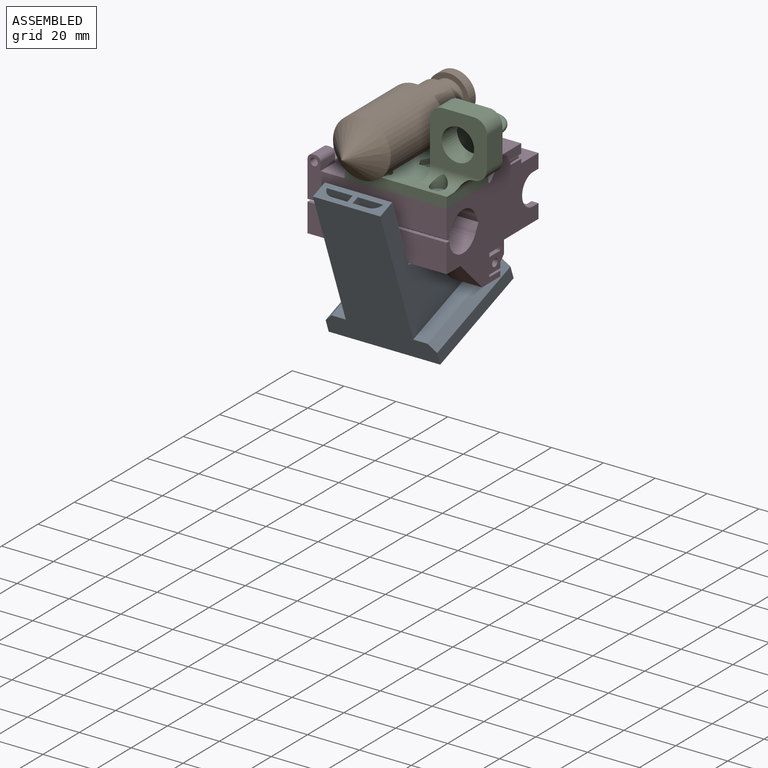
[diagram: assembled view]
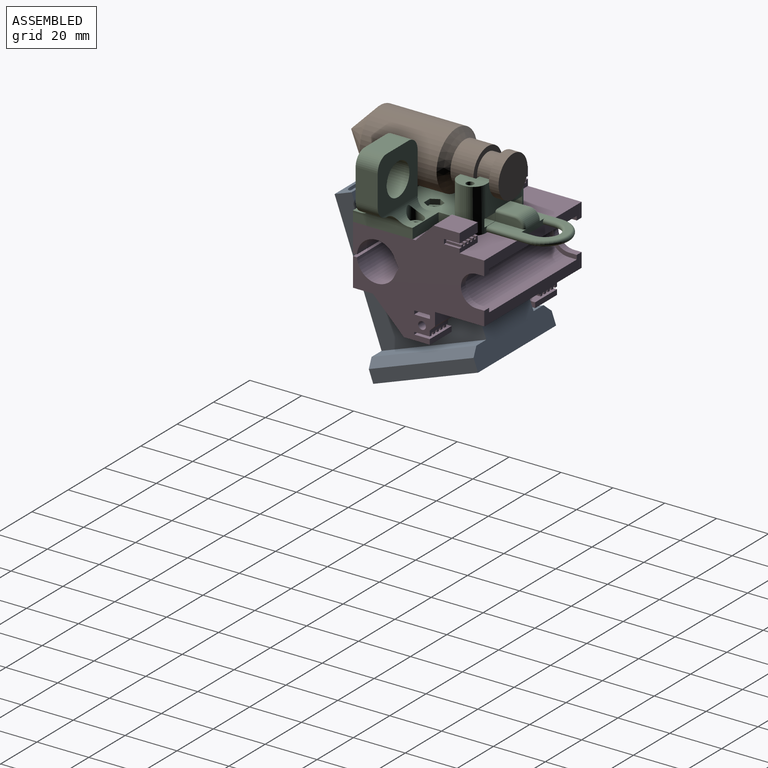
[diagram: assembled view, second angle]
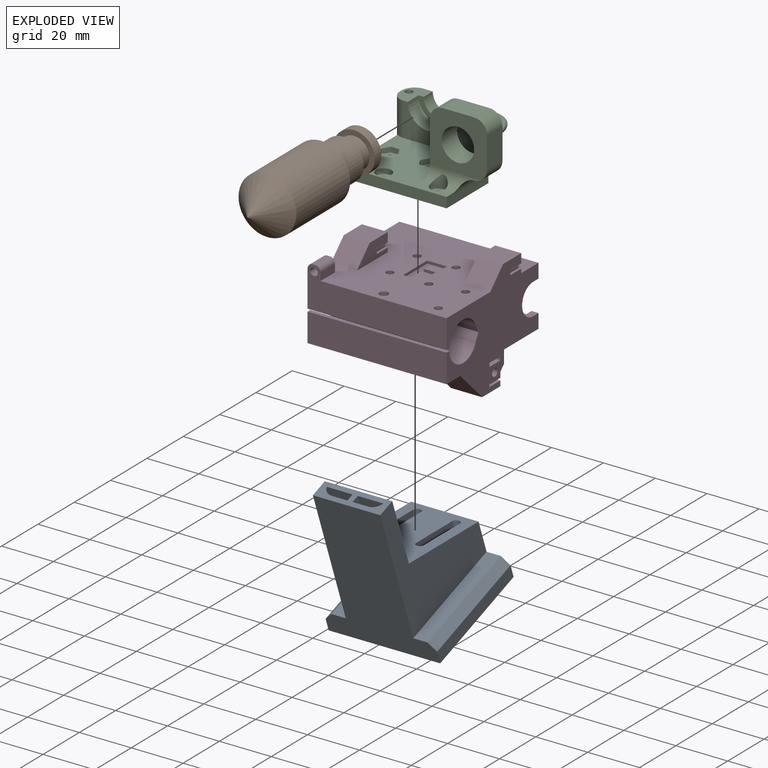
[diagram: exploded view]
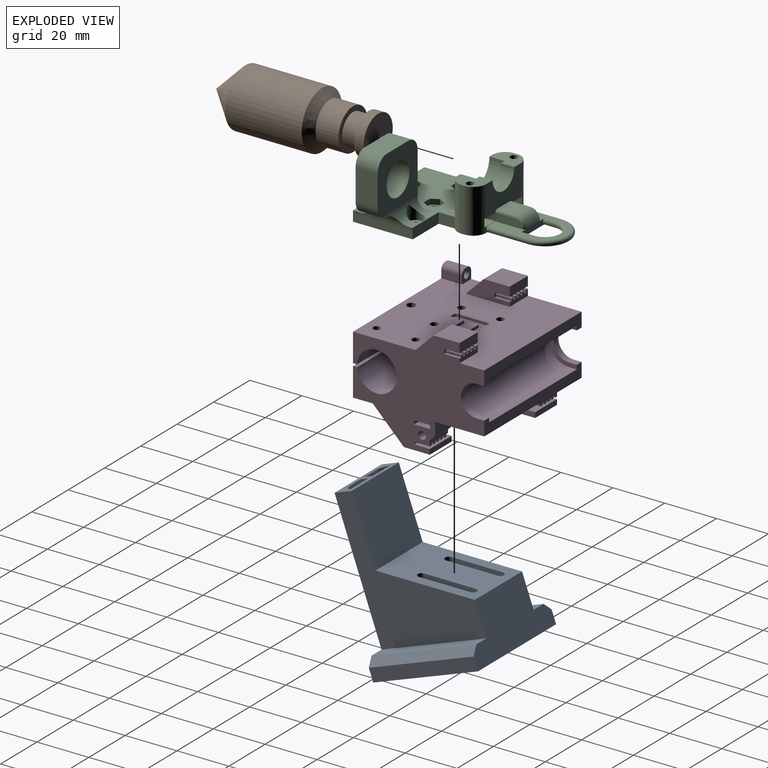
[diagram: exploded view, second angle]
ASSEMBLY  parts=4 mates=3
PART A: 95 faces, bbox 43.1x43.1x62.9 mm
  f0: plane 32.71x11.91mm, normal (0,0.34,-0.94), area 281.3mm2, adj f2,f4,f29,f46,f47,f48,f49,f93
  f1: plane 61x18.5mm, normal (0,-1,0), area 378.5mm2, adj f8,f14,f15,f35,f92,f94
  f2: plane 19.6x18.5mm, normal (0,1,0), area 204.5mm2, adj f0,f12,f15,f29,f40,f93
  f3: plane 24.8x9.87mm, normal (0,1,0), area 244.8mm2, adj f4,f14,f76,f93
  f4: cylinder r=5mm len=10mm, axis (-1,0,0), area 60.9mm2, adj f0,f3,f29,f76,f93
  f5: plane 3.5x0.67mm, normal (0,0,-1), area 2.3mm2, adj f12,f43,f85,f87
  f6: plane 3.5x0.67mm, normal (0,0,-1), area 2.3mm2, adj f12,f43,f74,f86
  f7: plane 3.5x0.67mm, normal (0,0,-1), area 2.3mm2, adj f8,f42,f89,f91
  f8: plane 39x6mm, normal (1,0,0), area 148.4mm2, adj f1,f7,f9,f13,f15,f26,f32,f35
  f9: plane 3.5x0.67mm, normal (0,0,-1), area 2.3mm2, adj f8,f42,f82,f90
  f10: plane 36x26mm, normal (0,-0.34,0.94), area 862.5mm2, adj f18,f20,f21,f22,f46,f47,f48,f49
  f11: plane 32.71x11.91mm, normal (0,0.34,-0.94), area 277.6mm2, adj f26,f27,f31,f50,f51,f52,f53,f79
  f12: plane 39x6mm, normal (-1,0,0), area 148.4mm2, adj f2,f5,f6,f15,f25,f30,f38,f40
  f13: plane 3.5x0.67mm, normal (0,0,-1), area 2.3mm2, adj f8,f42,f77,f88
  f14: plane 26x7mm, normal (0,0,1), area 128.8mm2, adj f1,f3,f16,f20,f21,f22,f25,f28
  f15: plane 43x43mm, normal (0,0,-1), area 406mm2, adj f1,f2,f8,f12,f16,f17,f18,f19
  f16: plane 61x43mm, normal (0,1,0), area 1713mm2, adj f14,f15,f17,f19,f20,f22,f23,f24
  f17: plane 43x5mm, normal (-1,0,0), area 215mm2, adj f15,f16,f18,f44
  f18: plane 43x21mm, normal (0,-1,0), area 673mm2, adj f10,f15,f17,f19,f20,f22,f23,f24
  f19: plane 43x5mm, normal (1,0,0), area 215mm2, adj f15,f16,f18,f45
  f20: plane 53x43mm, normal (-1,0,0), area 1074.9mm2, adj f10,f14,f16,f18,f21,f24
  f21: plane 26.9x26mm, normal (0,-1,0), area 699.3mm2, adj f10,f14,f20,f22
  f22: plane 53x43mm, normal (1,0,0), area 1074.9mm2, adj f10,f14,f16,f18,f21,f23
  f23: plane 43x5.5mm, normal (0,0,1), area 236.5mm2, adj f16,f18,f22,f45
  f24: plane 43x5.5mm, normal (0,0,1), area 236.5mm2, adj f16,f18,f20,f44
  f25: plane 61x18.5mm, normal (0,-1,0), area 408.4mm2, adj f12,f14,f15,f74,f75,f76,f93
  f26: plane 19.6x18.5mm, normal (0,1,0), area 160mm2, adj f8,f11,f15,f77,f78,f79,f94
  f27: plane 31x27.2mm, normal (1,0,0), area 522.3mm2, adj f11,f31,f36,f42,f79,f83,f92
  f28: plane 24.8x9.87mm, normal (0,1,0), area 244.8mm2, adj f14,f31,f92,f94
  f29: plane 35x32.2mm, normal (-1,0,0), area 625.1mm2, adj f0,f2,f4,f38,f40,f43,f76,f81
  f30: plane 3.5x0.67mm, normal (0,0,-1), area 2.3mm2, adj f12,f43,f80,f84
  f31: cylinder r=5mm len=10mm, axis (-1,0,0), area 60.9mm2, adj f11,f27,f28,f92,f94
  f32: plane 10x3.78mm, normal (0,-1,0), area 15.6mm2, adj f8,f33,f35,f82,f83
  f33: plane 8.25x5.05mm, normal (1,0,0), area 40.6mm2, adj f32,f35,f36,f83,f92
  f34: cylinder r=1.49mm len=5mm, axis (0,0,1), area 46.9mm2, adj f35,f37
  f35: plane 12.5x9mm, normal (0,0,-1), area 83.7mm2, adj f1,f8,f32,f33,f34,f92
  f36: plane 8.68x1.56mm, normal (0,0,1), area 11.2mm2, adj f27,f33,f83,f92
  f37: plane 2.98x2.98mm, normal (0,0,-1), area 7mm2, adj f34
  f38: plane 8.5x2.52mm, normal (0,1,0), area 10.9mm2, adj f12,f29,f40,f80,f81
  f39: cylinder r=1.5mm len=5mm, axis (0,0,1), area 47.1mm2, adj f40,f41
  f40: plane 9x8.5mm, normal (0,0,-1), area 69.4mm2, adj f2,f12,f29,f38,f39
  f41: plane 3x3mm, normal (0,0,-1), area 7.1mm2, adj f39
  f42: cylinder r=5mm len=22mm, axis (0,-1,0), area 172.8mm2, adj f7,f9,f13,f27,f54,f59,f78,f83
  f43: cylinder r=5mm len=22mm, axis (0,1,0), area 172.8mm2, adj f5,f6,f29,f30,f64,f69,f75,f81
  f44: plane 43x3mm, normal (-0.71,0,0.71), area 182.4mm2, adj f16,f17,f18,f24
  f45: plane 43x3mm, normal (0.71,0,0.71), area 182.4mm2, adj f16,f18,f19,f23
  f46: plane 19.39x8.69mm, normal (1,0,0), area 39.8mm2, adj f0,f10,f47,f49
  f47: cylinder r=1.5mm len=3mm, axis (0,-0.34,0.94), area 9.4mm2, adj f0,f10,f46,f48
  f48: plane 19.39x8.69mm, normal (-1,0,0), area 39.8mm2, adj f0,f10,f47,f49
  f49: cylinder r=1.5mm len=3mm, axis (0,-0.34,0.94), area 9.4mm2, adj f0,f10,f46,f48
  f50: plane 19.39x8.69mm, normal (-1,0,0), area 39.8mm2, adj f10,f11,f51,f53
  f51: cylinder r=1.5mm len=3mm, axis (0,-0.34,0.94), area 9.4mm2, adj f10,f11,f50,f52
  f52: plane 19.39x8.69mm, normal (1,0,0), area 39.8mm2, adj f10,f11,f51,f53
  f53: cylinder r=1.5mm len=3mm, axis (0,-0.34,0.94), area 9.4mm2, adj f10,f11,f50,f52
  f54: plane 10x1.5mm, normal (0,0,1), area 15mm2, adj f42,f57,f90,f91
  f55: plane 5x1mm, normal (0,-1,0), area 5mm2, adj f8,f57,f58,f91
  f56: plane 5x1mm, normal (0,1,0), area 5mm2, adj f8,f57,f58,f90
  f57: plane 10x5mm, normal (1,0,0), area 16.9mm2, adj f54,f55,f56,f58,f90,f91
  f58: plane 5x2mm, normal (0,0,-1), area 10mm2, adj f8,f55,f56,f57
  f59: plane 10x1.5mm, normal (0,0,1), area 15mm2, adj f42,f62,f88,f89
  f60: plane 5x1mm, normal (0,-1,0), area 5mm2, adj f8,f62,f63,f88
  f61: plane 5x1mm, normal (0,1,0), area 5mm2, adj f8,f62,f63,f89
  f62: plane 10x5mm, normal (1,0,0), area 16.9mm2, adj f59,f60,f61,f63,f88,f89
  f63: plane 5x2mm, normal (0,0,-1), area 10mm2, adj f8,f60,f61,f62
  f64: plane 10x1.5mm, normal (0,0,1), area 15mm2, adj f43,f66,f86,f87
  f65: plane 5x1mm, normal (0,-1,0), area 5mm2, adj f12,f66,f68,f87
  f66: plane 10x5mm, normal (-1,0,0), area 16.9mm2, adj f64,f65,f67,f68,f86,f87
  f67: plane 5x1mm, normal (0,1,0), area 5mm2, adj f12,f66,f68,f86
  f68: plane 5x2mm, normal (0,0,-1), area 10mm2, adj f12,f65,f66,f67
  f69: plane 10x1.5mm, normal (0,0,1), area 15mm2, adj f43,f71,f84,f85
  f70: plane 5x1mm, normal (0,-1,0), area 5mm2, adj f12,f71,f73,f84
  f71: plane 10x5mm, normal (-1,0,0), area 16.9mm2, adj f69,f70,f72,f73,f84,f85
  f72: plane 5x1mm, normal (0,1,0), area 5mm2, adj f12,f71,f73,f85
  f73: plane 5x2mm, normal (0,0,-1), area 10mm2, adj f12,f70,f71,f72
  f74: cylinder r=4mm len=4mm, axis (-1,0,0), area 22mm2, adj f6,f12,f25,f75
  f75: torus R=9mm, axis (0,1,0), area 63.7mm2, adj f25,f43,f74,f76
  f76: cylinder r=4mm len=50mm, axis (0,0,1), area 287mm2, adj f3,f4,f14,f25,f29,f75
  f77: cylinder r=4mm len=4mm, axis (1,0,0), area 22mm2, adj f8,f13,f26,f78
  f78: torus R=9mm, axis (0,1,0), area 63.7mm2, adj f26,f42,f77,f79
  f79: cylinder r=4mm len=10.06mm, axis (0,0,-1), area 57.4mm2, adj f11,f26,f27,f78
  f80: cylinder r=4mm len=4mm, axis (-1,0,0), area 22mm2, adj f12,f30,f38,f81
  f81: torus R=9mm, axis (0,1,0), area 38.1mm2, adj f29,f38,f43,f80
  f82: cylinder r=4mm len=4mm, axis (1,0,0), area 22mm2, adj f8,f9,f32,f83
  f83: torus R=9mm, axis (0,-1,0), area 41mm2, adj f27,f32,f33,f36,f42,f82
  f84: cylinder r=4mm len=5mm, axis (1,0,0), area 31.4mm2, adj f12,f30,f69,f70,f71
  f85: cylinder r=4mm len=5mm, axis (-1,0,0), area 31.4mm2, adj f5,f12,f69,f71,f72
  f86: cylinder r=4mm len=5mm, axis (-1,0,0), area 31.4mm2, adj f6,f12,f64,f66,f67
  f87: cylinder r=4mm len=5mm, axis (1,0,0), area 31.4mm2, adj f5,f12,f64,f65,f66
  f88: cylinder r=4mm len=5mm, axis (1,0,0), area 31.4mm2, adj f8,f13,f59,f60,f62
  f89: cylinder r=4mm len=5mm, axis (-1,0,0), area 31.4mm2, adj f7,f8,f59,f61,f62
  f90: cylinder r=4mm len=5mm, axis (-1,0,0), area 31.4mm2, adj f8,f9,f54,f56,f57
  f91: cylinder r=4mm len=5mm, axis (1,0,0), area 31.4mm2, adj f7,f8,f54,f55,f57
  f92: cylinder r=4mm len=60mm, axis (0,0,-1), area 332mm2, adj f1,f14,f27,f28,f31,f33,f35,f36
  f93: plane 61x39mm, normal (1,0,0), area 1126.7mm2, adj f0,f2,f3,f4,f14,f15,f25
  f94: plane 61x39mm, normal (-1,0,0), area 1126.7mm2, adj f1,f11,f14,f15,f26,f28,f31
PART B: 10 faces, bbox 22.3x22.3x62.3 mm
  f0: cylinder r=8mm len=16mm, axis (0,0,-1), area 186mm2, adj f1,f2
  f1: plane 16x16mm, normal (0,0,1), area 201.1mm2, adj f0
  f2: plane 16x16mm, normal (0,0,-1), area 88mm2, adj f0,f3
  f3: cylinder r=6mm len=12mm, axis (0,0,1), area 226.2mm2, adj f2,f5
  f4: cylinder r=8mm len=16mm, axis (0,0,1), area 444.8mm2, adj f5,f8
  f5: plane 16x16mm, normal (0,0,1), area 88mm2, adj f3,f4
  f6: cylinder r=11.15mm len=29.6mm, axis (0,0,1), area 2073.7mm2, adj f8,f9
  f7: plane 0.3x0.3mm, normal (0,0,-1), area 0.1mm2, adj f9
  f8: cone r=11.15mm half-angle=45deg, axis (0,0,-1), area 268mm2, adj f4,f6
  f9: cone r=0.15mm half-angle=45deg, axis (0,0,1), area 552.3mm2, adj f6,f7
PART C: 114 faces, bbox 51.3x65.5x30 mm
  f0: plane 19x15.9mm, normal (0,1,0), area 162.2mm2, adj f3,f4,f9,f10,f13,f70,f72,f74
  f1: plane 1.71x0.13mm, normal (0,0,-1), area 0.1mm2, adj f17,f79
  f2: plane 1.71x0.13mm, normal (0,0,-1), area 0.1mm2, adj f20,f70
  f3: cylinder r=5mm len=17mm, axis (0,0,-1), area 131.1mm2, adj f0,f12,f13,f23,f78,f79,f80,f91
  f4: cylinder r=5mm len=17mm, axis (0,0,-1), area 131.1mm2, adj f0,f9,f12,f24,f72,f73,f74,f89
  f5: plane 39.4x29.24mm, normal (0,0,1), area 684.8mm2, adj f6,f11,f14,f27,f28,f30,f31,f39
  f6: plane 29.24x4mm, normal (-1,0,0), area 117mm2, adj f5,f12,f28,f30
  f7: cylinder r=1.68mm len=3.35mm, axis (0,0,1), area 21mm2, adj f12,f21
  f8: cylinder r=1.68mm len=3.35mm, axis (0,0,1), area 21mm2, adj f12,f18
  f9: plane 11x8.5mm, normal (0,0,1), area 64.2mm2, adj f0,f4,f10,f14,f15,f16,f24,f26
  f10: cylinder r=6mm len=12mm, axis (0,1,0), area 94.2mm2, adj f0,f9,f13,f16
  f11: plane 6.24x4mm, normal (1,0,0), area 25mm2, adj f5,f12,f27,f31
  f12: plane 63.74x41.3mm, normal (0,0,-1), area 1518.2mm2, adj f3,f4,f6,f7,f8,f11,f23,f24
  f13: plane 11x8.5mm, normal (0,0,1), area 64.2mm2, adj f0,f3,f10,f14,f15,f16,f23,f25
  f14: plane 19x13mm, normal (0,-1,0), area 146.5mm2, adj f5,f9,f13,f15,f27,f28
  f15: cylinder r=8mm len=16mm, axis (0,-1,0), area 150.8mm2, adj f9,f13,f14,f16
  f16: plane 16x8mm, normal (0,-1,0), area 44mm2, adj f9,f10,f13,f15
  f17: cylinder r=3mm len=6mm, axis (0,0,1), area 10mm2, adj f1,f18,f19,f76,f77,f78,f79
  f18: plane 6x6mm, normal (0,0,1), area 19.5mm2, adj f8,f17
  f19: plane 1.71x0.13mm, normal (0,0,-1), area 0.1mm2, adj f17,f76
  f20: cylinder r=3mm len=6mm, axis (0,0,1), area 10mm2, adj f2,f21,f22,f70,f71,f72,f73
  f21: plane 6x6mm, normal (0,0,1), area 19.5mm2, adj f7,f20
  f22: plane 1.71x0.13mm, normal (0,0,-1), area 0.1mm2, adj f20,f73
  f23: plane 17x1mm, normal (1,0,0), area 17mm2, adj f3,f12,f13,f27
  f24: plane 17x1mm, normal (-1,0,0), area 17mm2, adj f4,f9,f12,f28
  f25: cylinder r=1.45mm len=17mm, axis (0,0,1), area 154.9mm2, adj f12,f13
  f26: cylinder r=1.45mm len=17mm, axis (0,0,1), area 154.9mm2, adj f9,f12
  f27: cylinder r=5mm len=17mm, axis (0,0,-1), area 120.6mm2, adj f5,f11,f12,f13,f14,f23
  f28: cylinder r=5mm len=17mm, axis (0,0,1), area 120.6mm2, adj f5,f6,f9,f12,f14,f24
  f29: plane 23x3mm, normal (1,0,0), area 69mm2, adj f12,f30,f31,f39
  f30: plane 39.4x4mm, normal (0,-1,0), area 157.2mm2, adj f5,f6,f12,f29,f39
  f31: plane 14.4x4mm, normal (0,1,0), area 57.2mm2, adj f5,f11,f12,f29,f39
  f32: plane 19x10.5mm, normal (-1,0,0), area 163.4mm2, adj f35,f36,f37,f67,f68,f69
  f33: plane 12x8.5mm, normal (0,0,1), area 102mm2, adj f35,f36,f37,f38
  f34: plane 12x8.5mm, normal (1,0,0), area 102mm2, adj f35,f36,f38,f40
  f35: plane 22x21mm, normal (0,-1,0), area 326.1mm2, adj f32,f33,f34,f37,f38,f40,f41,f68
  f36: plane 22x21mm, normal (0,1,0), area 326.1mm2, adj f32,f33,f34,f37,f38,f40,f41,f67
  f37: cylinder r=5mm len=8.5mm, axis (0,1,0), area 66.8mm2, adj f32,f33,f35,f36
  f38: cylinder r=5mm len=8.5mm, axis (0,-1,0), area 66.8mm2, adj f33,f34,f35,f36
  f39: cylinder r=5mm len=23mm, axis (0,1,0), area 94mm2, adj f5,f29,f30,f31,f40,f67,f68
  f40: cylinder r=5mm len=8.7mm, axis (0,1,0), area 67.1mm2, adj f34,f35,f36,f39,f67,f68
  f41: cylinder r=6.25mm len=12.5mm, axis (0,1,0), area 333.8mm2, adj f35,f36
  f42: cylinder r=3mm len=6mm, axis (0,0,1), area 57.4mm2, adj f5,f43,f67
  f43: plane 6x6mm, normal (0,0,1), area 19.5mm2, adj f42,f66
  f44: plane 2.86x2mm, normal (-0.87,0.5,0), area 6.6mm2, adj f5,f45,f49,f50
  f45: plane 2.86x2mm, normal (-0.87,-0.5,0), area 6.6mm2, adj f5,f44,f46,f50
  f46: plane 3.3x2mm, normal (0,-1,0), area 6.6mm2, adj f5,f45,f47,f50
  f47: plane 2.86x2mm, normal (0.87,-0.5,0), area 6.6mm2, adj f5,f46,f48,f50
  f48: plane 2.86x2mm, normal (0.87,0.5,0), area 6.6mm2, adj f5,f47,f49,f50
  f49: plane 3.3x2mm, normal (0,1,0), area 6.6mm2, adj f5,f44,f48,f50
  f50: plane 6.6x5.72mm, normal (0,0,1), area 19.5mm2, adj f44,f45,f46,f47,f48,f49,f65
  f51: cylinder r=3mm len=6mm, axis (0,0,1), area 37.7mm2, adj f5,f52
  f52: plane 6x6mm, normal (0,0,1), area 19.5mm2, adj f51,f64
  f53: plane 2.86x2mm, normal (-0.87,-0.5,0), area 6.6mm2, adj f5,f54,f58,f59
  f54: plane 3.3x2mm, normal (0,-1,0), area 6.6mm2, adj f5,f53,f55,f59
  f55: plane 2.86x2mm, normal (0.87,-0.5,0), area 6.6mm2, adj f5,f54,f56,f59
  f56: plane 2.86x2mm, normal (0.87,0.5,0), area 6.6mm2, adj f5,f55,f57,f59
  f57: plane 3.3x2mm, normal (0,1,0), area 6.6mm2, adj f5,f56,f58,f59
  f58: plane 2.86x2mm, normal (-0.87,0.5,0), area 6.6mm2, adj f5,f53,f57,f59
  f59: plane 6.6x5.72mm, normal (0,0,1), area 19.5mm2, adj f53,f54,f55,f56,f57,f58,f63
  f60: cylinder r=3mm len=6mm, axis (0,0,1), area 54.6mm2, adj f5,f61,f68
  f61: plane 6x6mm, normal (0,0,1), area 19.5mm2, adj f60,f62
  f62: cylinder r=1.68mm len=3.35mm, axis (0,0,1), area 21mm2, adj f12,f61
  f63: cylinder r=1.68mm len=3.35mm, axis (0,0,1), area 21mm2, adj f12,f59
  f64: cylinder r=1.68mm len=3.35mm, axis (0,0,1), area 21mm2, adj f12,f52
  f65: cylinder r=1.68mm len=3.35mm, axis (0,0,1), area 21mm2, adj f12,f50
  f66: cylinder r=1.68mm len=3.35mm, axis (0,0,1), area 21mm2, adj f12,f43
  f67: cylinder r=5mm len=22mm, axis (-1,0,0), area 80.7mm2, adj f5,f32,f36,f39,f40,f42,f69
  f68: cylinder r=5mm len=22mm, axis (1,0,0), area 83mm2, adj f5,f32,f35,f39,f40,f60,f69
  f69: cylinder r=2mm len=18.5mm, axis (0,-1,0), area 44.1mm2, adj f5,f32,f67,f68
  f70: plane 10x3mm, normal (-1,0,0), area 26.9mm2, adj f0,f2,f20,f71,f72,f74,f75
  f71: plane 5.75x2.7mm, normal (0,0,1), area 6.5mm2, adj f20,f70,f73,f75
  f72: plane 5.75x5.58mm, normal (0,0,1), area 23mm2, adj f0,f4,f20,f70,f73
  f73: plane 9.92x3mm, normal (1,0,0), area 26.7mm2, adj f4,f20,f22,f71,f72,f74,f75
  f74: plane 10x5.75mm, normal (0,0,-1), area 48.7mm2, adj f0,f4,f70,f73,f75,f84
  f75: plane 5.75x3mm, normal (0,1,0), area 17.2mm2, adj f70,f71,f73,f74
  f76: plane 10x3mm, normal (1,0,0), area 26.9mm2, adj f0,f17,f19,f77,f78,f80,f81
  f77: plane 5.75x2.7mm, normal (0,0,1), area 6.5mm2, adj f17,f76,f79,f81
  f78: plane 5.75x5.58mm, normal (0,0,1), area 23mm2, adj f0,f3,f17,f76,f79
  f79: plane 9.92x3mm, normal (-1,0,0), area 26.7mm2, adj f1,f3,f17,f77,f78,f80,f81
  f80: plane 10x5.75mm, normal (0,0,-1), area 48.7mm2, adj f0,f3,f76,f79,f81,f82
  f81: plane 5.75x3mm, normal (0,1,0), area 17.2mm2, adj f76,f77,f79,f80
  f82: cylinder r=1.68mm len=3.8mm, axis (0,0,-1), area 40mm2, adj f80,f83
  f83: plane 3.35x3.35mm, normal (0,0,-1), area 8.8mm2, adj f82
  f84: cylinder r=1.68mm len=3.8mm, axis (0,0,-1), area 40mm2, adj f74,f85
  f85: plane 3.35x3.35mm, normal (0,0,-1), area 8.8mm2, adj f84
  f86: cylinder r=5.5mm len=11mm, axis (0,0,-1), area 1.7mm2, adj f87,f92,f106,f112
  f87: plane 4.64x0.1mm, normal (1,0,0), area 0.5mm2, adj f86,f88,f105,f111
  f88: plane 13x2.1mm, normal (0,1,0), area 24mm2, adj f12,f87,f92,f93,f97,f105,f107,f111
  f89: plane 16x0.1mm, normal (-1,0,0), area 1.6mm2, adj f4,f90,f102,f108
  f90: cylinder r=9.5mm len=19mm, axis (0,0,-1), area 3mm2, adj f89,f91,f103,f109
  f91: plane 16x0.1mm, normal (1,0,0), area 1.6mm2, adj f3,f90,f104,f110
  f92: plane 4.64x0.1mm, normal (-1,0,0), area 0.5mm2, adj f86,f88,f107,f113
  f93: plane 24.5x17mm, normal (0,0,1), area 157mm2, adj f0,f88,f94,f95,f98,f100,f108,f109
  f94: plane 10.36x3mm, normal (1,0,0), area 29.2mm2, adj f0,f93,f98,f99
  f95: plane 10.36x3mm, normal (-1,0,0), area 29.2mm2, adj f0,f93,f100,f101
  f96: plane 7.36x7mm, normal (0,0,1), area 51.5mm2, adj f0,f97,f99,f101
  f97: cylinder r=4mm len=7mm, axis (1,0,0), area 44mm2, adj f88,f96,f98,f100
  f98: torus R=3mm, axis (-1,0,0), area 9mm2, adj f93,f94,f97,f99
  f99: cylinder r=1mm len=7.36mm, axis (0,-1,0), area 11.6mm2, adj f0,f94,f96,f98
  f100: torus R=3mm, axis (-1,0,0), area 9mm2, adj f93,f95,f97,f101
  f101: cylinder r=1mm len=7.36mm, axis (0,1,0), area 11.6mm2, adj f0,f95,f96,f100
  f102: cylinder r=1mm len=16.1mm, axis (0,-1,0), area 25.2mm2, adj f4,f12,f89,f103
  f103: torus R=8.5mm, axis (0,0,1), area 45.1mm2, adj f12,f90,f102,f104
  f104: cylinder r=1mm len=16.1mm, axis (0,1,0), area 25.2mm2, adj f3,f12,f91,f103
  f105: cylinder r=1mm len=4.64mm, axis (0,1,0), area 7.3mm2, adj f12,f87,f88,f106
  f106: torus R=6.5mm, axis (0,0,1), area 28.9mm2, adj f12,f86,f105,f107
  f107: cylinder r=1mm len=4.64mm, axis (0,-1,0), area 7.3mm2, adj f12,f88,f92,f106
  f108: cylinder r=1mm len=16mm, axis (0,-1,0), area 25.1mm2, adj f0,f89,f93,f109
  f109: torus R=8.5mm, axis (0,0,-1), area 45.1mm2, adj f90,f93,f108,f110
  f110: cylinder r=1mm len=16mm, axis (0,1,0), area 25.1mm2, adj f0,f91,f93,f109
  f111: cylinder r=1mm len=4.64mm, axis (0,1,0), area 7.3mm2, adj f87,f88,f93,f112
  f112: torus R=6.5mm, axis (0,0,-1), area 28.9mm2, adj f86,f93,f111,f113
  f113: cylinder r=1mm len=4.64mm, axis (0,-1,0), area 7.3mm2, adj f88,f92,f93,f112
PART D: 172 faces, bbox 53.6x42x50.6 mm
  f0: plane 50.6x42mm, normal (-1,0,0), area 1182.7mm2, adj f2,f5,f6,f10,f13,f17,f21,f22
  f1: plane 8.2x8mm, normal (1,0,0), area 36.1mm2, adj f2,f6,f86,f161,f162,f163,f168,f169
  f2: plane 53.6x50.6mm, normal (0,1,0), area 2108.9mm2, adj f0,f1,f3,f4,f7,f17,f21,f84
  f3: plane 50.6x42mm, normal (1,0,0), area 1153.3mm2, adj f2,f8,f9,f10,f11,f17,f18,f19
  f4: plane 8.2x8mm, normal (-1,0,0), area 36.1mm2, adj f2,f7,f8,f119,f120,f140,f164,f165
  f5: plane 12x2mm, normal (0,0,1), area 24mm2, adj f0,f87,f88,f142
  f6: plane 10x2.1mm, normal (0,0,1), area 16.5mm2, adj f0,f1,f143,f144,f145,f146,f147,f148
  f7: plane 2x1.6mm, normal (0,0,1), area 3.2mm2, adj f2,f4,f84,f118
  f8: plane 10x2.1mm, normal (0,0,1), area 16.5mm2, adj f3,f4,f120,f121,f122,f123,f124,f125
  f9: plane 12x2mm, normal (0,0,1), area 24mm2, adj f3,f84,f85,f139
  f10: plane 53.6x50.6mm, normal (0,-1,0), area 2226.4mm2, adj f0,f3,f11,f12,f13,f22,f23,f36
  f11: plane 10x2.5mm, normal (0,0,1), area 20.5mm2, adj f3,f10,f12,f63,f64,f65,f66,f67
  f12: plane 17x7mm, normal (-1,0,0), area 89.1mm2, adj f10,f11,f38,f39,f40,f75,f76,f83
  f13: plane 10x2.5mm, normal (0,0,1), area 20.5mm2, adj f0,f10,f36,f42,f43,f44,f45,f46
  f14: plane 48.3x3mm, normal (0,-1,0), area 144.9mm2, adj f15,f17,f30,f34
  f15: cylinder r=7.6mm len=48.3mm, axis (-1,0,0), area 1153.2mm2, adj f14,f16,f30,f34
  f16: plane 48.3x3mm, normal (0,1,0), area 144.9mm2, adj f15,f23,f30,f34
  f17: plane 53.6x5.5mm, normal (0,0,1), area 217.5mm2, adj f0,f2,f3,f14,f20,f30,f31,f34
  f18: cylinder r=6mm len=12mm, axis (-1,0,0), area 50mm2, adj f3,f19,f20,f30
  f19: plane 3x2.65mm, normal (0,1,0), area 7.9mm2, adj f3,f18,f23,f30
  f20: plane 3x2.65mm, normal (0,-1,0), area 7.9mm2, adj f3,f17,f18,f30
  f21: plane 53.6x11mm, normal (0,0,-1), area 589.6mm2, adj f0,f2,f3,f28
  f22: plane 53.6x16mm, normal (0,0,-1), area 606.3mm2, adj f0,f3,f10,f29,f113,f114,f115,f116
  f23: plane 53.6x5.5mm, normal (0,0,1), area 217.5mm2, adj f0,f3,f10,f16,f19,f30,f32,f34
  f24: plane 53.6x2.44mm, normal (0,-0.46,-0.89), area 136mm2, adj f0,f3,f25,f27,f92,f93
  f25: cylinder r=7.6mm len=53.6mm, axis (-1,0,0), area 1106.4mm2, adj f0,f3,f24,f28,f95
  f26: cylinder r=7.6mm len=53.6mm, axis (-1,0,0), area 1104.3mm2, adj f0,f3,f27,f29,f94,f97,f98
  f27: plane 53.6x2.44mm, normal (0,0.46,-0.89), area 136mm2, adj f0,f3,f24,f26,f92,f93
  f28: plane 53.6x1.52mm, normal (0,-1,0), area 81.3mm2, adj f0,f3,f21,f25
  f29: plane 53.6x1.52mm, normal (0,1,0), area 81.3mm2, adj f0,f3,f22,f26
  f30: plane 15.2x10.6mm, normal (-1,0,0), area 43.8mm2, adj f14,f15,f16,f17,f18,f19,f20,f23
  f31: plane 3x2.65mm, normal (0,-1,0), area 7.9mm2, adj f0,f17,f33,f34
  f32: plane 3x2.65mm, normal (0,1,0), area 7.9mm2, adj f0,f23,f33,f34
  f33: cylinder r=6mm len=12mm, axis (-1,0,0), area 50mm2, adj f0,f31,f32,f34
  f34: plane 15.2x10.6mm, normal (1,0,0), area 43.8mm2, adj f14,f15,f16,f17,f23,f31,f32,f33
  f35: plane 10x3.6mm, normal (0,0,1), area 36mm2, adj f0,f36,f37,f55
  f36: plane 17x7mm, normal (1,0,0), area 83.7mm2, adj f10,f13,f35,f37,f41,f55,f56,f62
  f37: plane 10x10mm, normal (0,-1,0), area 100mm2, adj f0,f35,f36,f41
  f38: plane 10x3.6mm, normal (0,0,1), area 36mm2, adj f3,f12,f39,f76
  f39: plane 10x10mm, normal (0,-1,0), area 100mm2, adj f3,f12,f38,f40
  f40: plane 10x7mm, normal (0,-0.71,-0.71), area 99mm2, adj f3,f10,f12,f39
  f41: plane 10x7mm, normal (0,-0.71,-0.71), area 99mm2, adj f0,f10,f36,f37
  f42: plane 6x1mm, normal (0,-1,0), area 6mm2, adj f13,f43,f61,f62
  f43: plane 6x0.9mm, normal (-1,0,0), area 5.4mm2, adj f13,f42,f44,f62
  f44: plane 6x1mm, normal (0,-1,0), area 6mm2, adj f13,f43,f45,f62
  f45: plane 6x0.9mm, normal (1,0,0), area 5.4mm2, adj f13,f44,f46,f62
  f46: plane 6x1mm, normal (0,-1,0), area 6mm2, adj f13,f45,f47,f62
  f47: plane 6x0.9mm, normal (-1,0,0), area 5.4mm2, adj f13,f46,f48,f62
  f48: plane 6x1mm, normal (0,-1,0), area 6mm2, adj f13,f47,f49,f62
  f49: plane 6x0.9mm, normal (1,0,0), area 5.4mm2, adj f13,f48,f50,f62
  f50: plane 6x1mm, normal (0,-1,0), area 6mm2, adj f13,f49,f51,f62
  f51: plane 6x0.9mm, normal (-1,0,0), area 5.4mm2, adj f13,f50,f52,f62
  f52: plane 6x1mm, normal (0,-1,0), area 6mm2, adj f13,f51,f53,f62
  f53: plane 6x0.9mm, normal (1,0,0), area 5.4mm2, adj f13,f52,f54,f62
  f54: plane 6x1mm, normal (0,-1,0), area 6mm2, adj f0,f13,f53,f62
  f55: plane 10x6mm, normal (0,1,0), area 60mm2, adj f0,f35,f36,f62
  f56: plane 6x1mm, normal (0,-1,0), area 6mm2, adj f13,f36,f57,f62
  f57: plane 6x0.9mm, normal (1,0,0), area 5.4mm2, adj f13,f56,f58,f62
  f58: plane 6x1mm, normal (0,-1,0), area 6mm2, adj f13,f57,f59,f62
  f59: plane 6x0.9mm, normal (-1,0,0), area 5.4mm2, adj f13,f58,f60,f62
  f60: plane 6x1mm, normal (0,-1,0), area 6mm2, adj f13,f59,f61,f62
  f61: plane 6x0.9mm, normal (1,0,0), area 5.4mm2, adj f13,f42,f60,f62
  f62: plane 10x1.8mm, normal (0,0,1), area 13.5mm2, adj f0,f36,f42,f43,f44,f45,f46,f47
  f63: plane 6x1mm, normal (0,-1,0), area 6mm2, adj f11,f64,f82,f83
  f64: plane 6x0.9mm, normal (-1,0,0), area 5.4mm2, adj f11,f63,f65,f83
  f65: plane 6x1mm, normal (0,-1,0), area 6mm2, adj f11,f64,f66,f83
  f66: plane 6x0.9mm, normal (1,0,0), area 5.4mm2, adj f11,f65,f67,f83
  f67: plane 6x1mm, normal (0,-1,0), area 6mm2, adj f11,f66,f68,f83
  f68: plane 6x0.9mm, normal (-1,0,0), area 5.4mm2, adj f11,f67,f69,f83
  f69: plane 6x1mm, normal (0,-1,0), area 6mm2, adj f11,f68,f70,f83
  f70: plane 6x0.9mm, normal (1,0,0), area 5.4mm2, adj f11,f69,f71,f83
  f71: plane 6x1mm, normal (0,-1,0), area 6mm2, adj f11,f70,f72,f83
  f72: plane 6x0.9mm, normal (-1,0,0), area 5.4mm2, adj f11,f71,f73,f83
  f73: plane 6x1mm, normal (0,-1,0), area 6mm2, adj f11,f72,f74,f83
  f74: plane 6x0.9mm, normal (1,0,0), area 5.4mm2, adj f11,f73,f75,f83
  f75: plane 6x1mm, normal (0,-1,0), area 6mm2, adj f11,f12,f74,f83
  f76: plane 10x6mm, normal (0,1,0), area 60mm2, adj f3,f12,f38,f83
  f77: plane 6x1mm, normal (0,-1,0), area 6mm2, adj f3,f11,f78,f83
  f78: plane 6x0.9mm, normal (1,0,0), area 5.4mm2, adj f11,f77,f79,f83
  f79: plane 6x1mm, normal (0,-1,0), area 6mm2, adj f11,f78,f80,f83
  f80: plane 6x0.9mm, normal (-1,0,0), area 5.4mm2, adj f11,f79,f81,f83
  f81: plane 6x1mm, normal (0,-1,0), area 6mm2, adj f11,f80,f82,f83
  f82: plane 6x0.9mm, normal (1,0,0), area 5.4mm2, adj f11,f63,f81,f83
  f83: plane 10x1.8mm, normal (0,0,1), area 13.5mm2, adj f3,f12,f63,f64,f65,f66,f67,f68
  f84: plane 22x12mm, normal (-1,0,0), area 141.6mm2, adj f2,f7,f9,f85,f89,f118,f139,f140
  f85: plane 12x10mm, normal (0,1,0), area 120mm2, adj f3,f9,f84,f89
  f86: plane 2x1.6mm, normal (0,0,1), area 3.2mm2, adj f1,f2,f87,f141
  f87: plane 22x12mm, normal (1,0,0), area 141.6mm2, adj f2,f5,f86,f88,f90,f141,f142,f163
  f88: plane 12x10mm, normal (0,1,0), area 120mm2, adj f0,f5,f87,f90
  f89: plane 12x12mm, normal (0,0.71,-0.71), area 203.6mm2, adj f2,f3,f84,f85
  f90: plane 12x12mm, normal (0,0.71,-0.71), area 203.6mm2, adj f0,f2,f87,f88
  f91: cylinder r=1.45mm len=23mm, axis (0,-1,0), area 209.5mm2, adj f2,f10
  f92: cylinder r=1.45mm len=23mm, axis (0,-1,0), area 197.2mm2, adj f2,f10,f24,f27
  f93: cylinder r=1.45mm len=23mm, axis (0,-1,0), area 197.2mm2, adj f2,f10,f24,f27
  f94: cylinder r=1.68mm len=8.79mm, axis (0,-1,0), area 68.3mm2, adj f10,f26
  f95: cylinder r=1.68mm len=8.79mm, axis (0,-1,0), area 68.3mm2, adj f2,f25
  f96: cylinder r=1.45mm len=23mm, axis (0,-1,0), area 209.5mm2, adj f2,f10
  f97: cylinder r=1.45mm len=5mm, axis (0,-1,0), area 44.4mm2, adj f10,f26,f98
  f98: plane 2.9x1.96mm, normal (0,-1,0), area 4.8mm2, adj f26,f97
  f99: cylinder r=1.45mm len=5mm, axis (0,-1,0), area 45.6mm2, adj f10,f100
  f100: plane 2.9x2.9mm, normal (0,-1,0), area 6.6mm2, adj f99
  f101: plane 2.75x1mm, normal (0,0,1), area 2.7mm2, adj f10,f102,f110,f111
  f102: plane 5.2x1mm, normal (-1,0,0), area 5.2mm2, adj f10,f101,f103,f111
  f103: plane 4.47x1mm, normal (0,0,1), area 4.5mm2, adj f10,f102,f104,f111
  f104: plane 2.28x1mm, normal (-1,0,0), area 2.3mm2, adj f10,f103,f105,f111
  f105: plane 4.47x1mm, normal (0,0,-1), area 4.5mm2, adj f10,f104,f106,f111
  f106: plane 3.39x1mm, normal (-1,0,0), area 3.4mm2, adj f10,f105,f107,f111
  f107: plane 4.8x1mm, normal (0,0,1), area 4.8mm2, adj f10,f106,f108,f111
  f108: plane 2.29x1mm, normal (-1,0,0), area 2.3mm2, adj f10,f107,f109,f111
  f109: plane 7.55x1mm, normal (0,0,-1), area 7.5mm2, adj f10,f108,f110,f111
  f110: plane 13.17x1mm, normal (1,0,0), area 13.2mm2, adj f10,f101,f109,f111
  f111: plane 13.17x7.55mm, normal (0,-1,0), area 57.3mm2, adj f101,f102,f103,f104,f105,f106,f107,f108
  f112: plane 5x5mm, normal (0,0,1), area 16.7mm2, adj f0,f10,f113,f114,f115,f116,f117
  f113: plane 8x3mm, normal (1,0,0), area 24mm2, adj f10,f22,f112,f117
  f114: plane 8x1mm, normal (0,-1,0), area 8mm2, adj f22,f112,f116,f117
  f115: cylinder r=1.45mm len=8mm, axis (0,0,1), area 72.9mm2, adj f22,f112
  f116: cylinder r=2mm len=8mm, axis (0,0,-1), area 25.1mm2, adj f0,f22,f112,f114
  f117: cylinder r=2mm len=8mm, axis (0,0,-1), area 25.1mm2, adj f22,f112,f113,f114
  f118: plane 12x6mm, normal (0,1,0), area 72mm2, adj f3,f7,f84,f140,f166
  f119: plane 10x6mm, normal (0,-1,0), area 60mm2, adj f3,f4,f140,f166
  f120: plane 6x1mm, normal (0,1,0), area 6mm2, adj f4,f8,f121,f140
  f121: plane 6x0.9mm, normal (-1,0,0), area 5.4mm2, adj f8,f120,f122,f140
  f122: plane 6x1mm, normal (0,1,0), area 6mm2, adj f8,f121,f123,f140
  f123: plane 6x0.9mm, normal (1,0,0), area 5.4mm2, adj f8,f122,f124,f140
  f124: plane 6x1mm, normal (0,1,0), area 6mm2, adj f8,f123,f125,f140
  f125: plane 6x0.9mm, normal (-1,0,0), area 5.4mm2, adj f8,f124,f126,f140
  f126: plane 6x1mm, normal (0,1,0), area 6mm2, adj f8,f125,f127,f140
  f127: plane 6x0.9mm, normal (1,0,0), area 5.4mm2, adj f8,f126,f128,f140
  f128: plane 6x1mm, normal (0,1,0), area 6mm2, adj f8,f127,f129,f140
  f129: plane 6x0.9mm, normal (-1,0,0), area 5.4mm2, adj f8,f128,f130,f140
  f130: plane 6x1mm, normal (0,1,0), area 6mm2, adj f8,f129,f131,f140
  f131: plane 6x0.9mm, normal (1,0,0), area 5.4mm2, adj f8,f130,f132,f140
  f132: plane 6x1mm, normal (0,1,0), area 6mm2, adj f8,f131,f133,f140
  f133: plane 6x0.9mm, normal (-1,0,0), area 5.4mm2, adj f8,f132,f134,f140
  f134: plane 6x1mm, normal (0,1,0), area 6mm2, adj f8,f133,f135,f140
  f135: plane 6x0.9mm, normal (1,0,0), area 5.4mm2, adj f8,f134,f136,f140
  f136: plane 6x1mm, normal (0,1,0), area 6mm2, adj f8,f135,f137,f140
  f137: plane 6x0.9mm, normal (-1,0,0), area 5.4mm2, adj f8,f136,f138,f140
  f138: plane 6x1mm, normal (0,1,0), area 6mm2, adj f3,f8,f137,f140
  f139: plane 12x6mm, normal (0,-1,0), area 72mm2, adj f3,f9,f84,f140
  f140: plane 12x8.4mm, normal (0,0,1), area 44.3mm2, adj f3,f4,f84,f118,f119,f120,f121,f122
  f141: plane 12x6mm, normal (0,1,0), area 72mm2, adj f0,f86,f87,f163,f169
  f142: plane 12x6mm, normal (0,-1,0), area 72mm2, adj f0,f5,f87,f163
  f143: plane 6x1mm, normal (0,1,0), area 6mm2, adj f0,f6,f144,f163
  f144: plane 6x0.9mm, normal (1,0,0), area 5.4mm2, adj f6,f143,f145,f163
  f145: plane 6x1mm, normal (0,1,0), area 6mm2, adj f6,f144,f146,f163
  f146: plane 6x0.9mm, normal (-1,0,0), area 5.4mm2, adj f6,f145,f147,f163
  f147: plane 6x1mm, normal (0,1,0), area 6mm2, adj f6,f146,f148,f163
  f148: plane 6x0.9mm, normal (1,0,0), area 5.4mm2, adj f6,f147,f149,f163
  f149: plane 6x1mm, normal (0,1,0), area 6mm2, adj f6,f148,f150,f163
  f150: plane 6x0.9mm, normal (-1,0,0), area 5.4mm2, adj f6,f149,f151,f163
  f151: plane 6x1mm, normal (0,1,0), area 6mm2, adj f6,f150,f152,f163
  f152: plane 6x0.9mm, normal (1,0,0), area 5.4mm2, adj f6,f151,f153,f163
  f153: plane 6x1mm, normal (0,1,0), area 6mm2, adj f6,f152,f154,f163
  f154: plane 6x0.9mm, normal (-1,0,0), area 5.4mm2, adj f6,f153,f155,f163
  f155: plane 6x1mm, normal (0,1,0), area 6mm2, adj f6,f154,f156,f163
  f156: plane 6x0.9mm, normal (1,0,0), area 5.4mm2, adj f6,f155,f157,f163
  f157: plane 6x1mm, normal (0,1,0), area 6mm2, adj f6,f156,f158,f163
  f158: plane 6x0.9mm, normal (-1,0,0), area 5.4mm2, adj f6,f157,f159,f163
  f159: plane 6x1mm, normal (0,1,0), area 6mm2, adj f6,f158,f160,f163
  f160: plane 6x0.9mm, normal (1,0,0), area 5.4mm2, adj f6,f159,f161,f163
  f161: plane 6x1mm, normal (0,1,0), area 6mm2, adj f1,f6,f160,f163
  f162: plane 10x6mm, normal (0,-1,0), area 60mm2, adj f0,f1,f163,f169
  f163: plane 12x8.4mm, normal (0,0,1), area 44.3mm2, adj f0,f1,f87,f141,f142,f143,f144,f145
  f164: plane 10x5mm, normal (0,0,1), area 50mm2, adj f2,f3,f4,f165
  f165: plane 10x2mm, normal (0,0.71,0.71), area 28.3mm2, adj f3,f4,f8,f164
  f166: cylinder r=3.08mm len=10mm, axis (1,0,0), area 14.1mm2, adj f3,f4,f118,f119
  f167: cylinder r=1.5mm len=10mm, axis (1,0,0), area 94.2mm2, adj f3,f4
  f168: plane 10x5mm, normal (0,0,1), area 50mm2, adj f0,f1,f2,f171
  f169: cylinder r=3.08mm len=10mm, axis (-1,0,0), area 14.1mm2, adj f0,f1,f141,f162
  f170: cylinder r=1.5mm len=10mm, axis (-1,0,0), area 94.2mm2, adj f0,f1
  f171: plane 10x2mm, normal (0,0.71,0.71), area 28.3mm2, adj f0,f1,f6,f168
PLACE A rot(axis=(0,-0.17,0.98),180deg) t=(46.3,44.48,-47.73)mm
PLACE B rot(axis=(-1,0,0),90deg) t=(24.8,39.24,12)mm
PLACE C t=(12.3,14.24,-5)mm
PLACE D rot(axis=(-1,0,0),90deg) t=(-2,0,-5)mm
MATE fastened D.f96 <-> A.f47  axis (0,0,-1) through (17.3,32.8,-28)mm
MATE fastened C.f10 <-> B.f0  axis (0,1,0) through (24.8,39.24,12)mm
MATE fastened D.f93 <-> C.f65  axis (0,0,1) through (32.3,17.8,-5)mm
